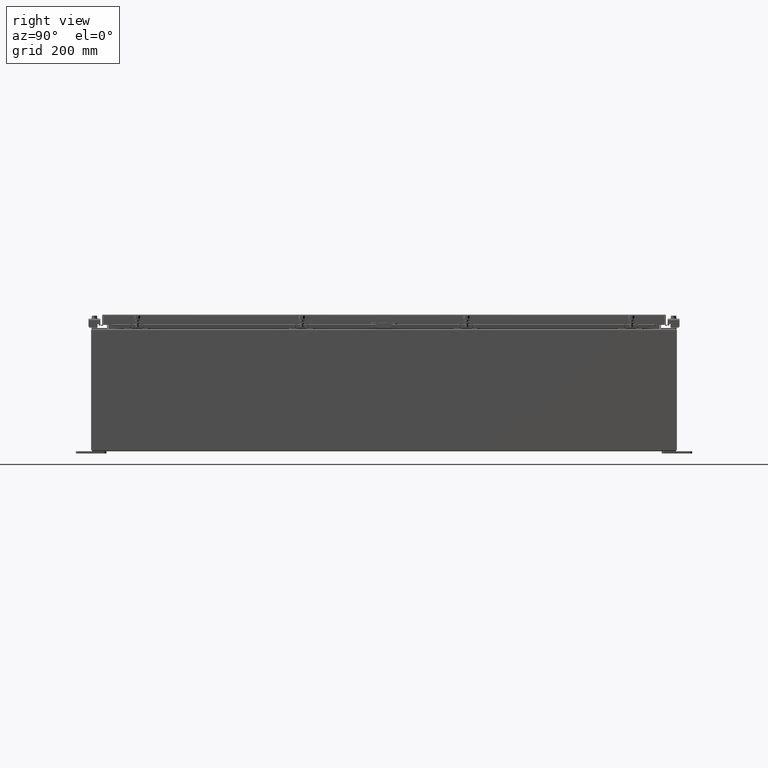
[diagram: clean part render]
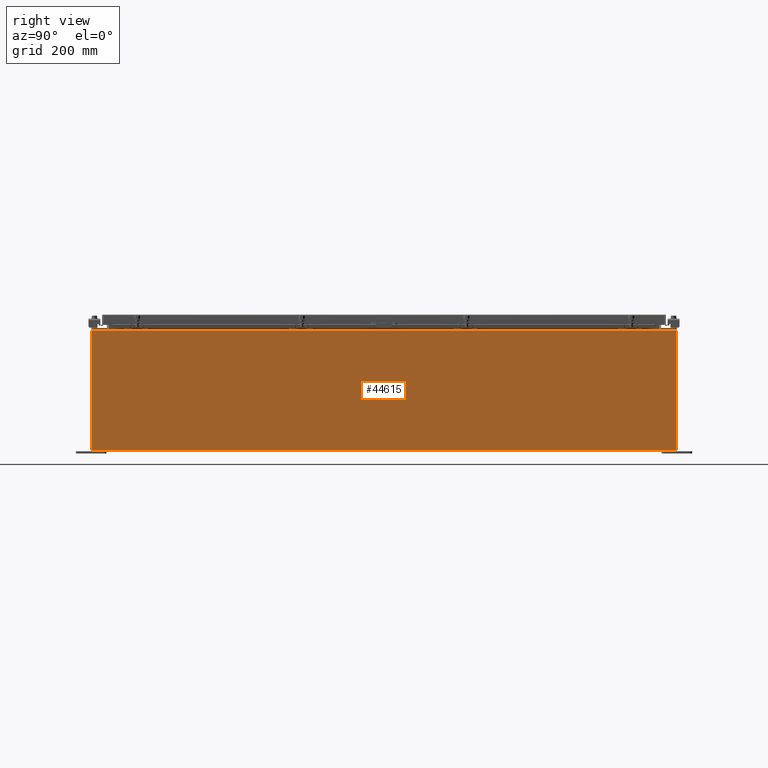
[diagram: same view with one face highlighted and labeled with its STEP entity id]
A machine part, right view. The second image highlights one B-rep face of the part: STEP entity #44615.
In plain terms, the highlighted planar face has unit normal (-1, 0, 0).
Its self-contained STEP definition (entity closure, byte-faithful):
#569 = EDGE_LOOP ( 'NONE', ( #42918, #6425, #26117, #10648 ) ) ;
#2045 = CARTESIAN_POINT ( 'NONE',  ( 15.00000000000003400, -23.92529999999998600, 9.837600000000001900 ) ) ;
#3086 = LINE ( 'NONE', #20390, #34257 ) ;
#4855 = VERTEX_POINT ( 'NONE', #5980 ) ;
#5980 = CARTESIAN_POINT ( 'NONE',  ( 14.99999999999999800, -23.92529999999998200, 0.01300000000000071400 ) ) ;
#6425 = ORIENTED_EDGE ( 'NONE', *, *, #45496, .T. ) ;
#6524 = LINE ( 'NONE', #9921, #14799 ) ;
#8556 = EDGE_CURVE ( 'NONE', #39791, #4855, #12468, .T. ) ;
#9921 = CARTESIAN_POINT ( 'NONE',  ( 14.99999999999999800, 23.92529999999999600, -5.310029537684911500E-014 ) ) ;
#10205 = FACE_OUTER_BOUND ( 'NONE', #569, .T. ) ;
#10648 = ORIENTED_EDGE ( 'NONE', *, *, #15050, .T. ) ;
#12468 = LINE ( 'NONE', #31070, #43641 ) ;
#14002 = DIRECTION ( 'NONE',  ( 3.523082860860888200E-015, 0.0000000000000000000, 1.000000000000000000 ) ) ;
#14799 = VECTOR ( 'NONE', #14002, 39.37007874015748100 ) ;
#15050 = EDGE_CURVE ( 'NONE', #39791, #20518, #6524, .T. ) ;
#15096 = VERTEX_POINT ( 'NONE', #2045 ) ;
#16465 = DIRECTION ( 'NONE',  ( -3.523082860860888200E-015, 0.0000000000000000000, -1.000000000000000000 ) ) ;
#18135 = CARTESIAN_POINT ( 'NONE',  ( 14.99999999999999800, 0.0000000000000000000, -5.310029537684911500E-014 ) ) ;
#20390 = CARTESIAN_POINT ( 'NONE',  ( 14.99999999999999800, -23.92529999999998600, -5.310029537684911500E-014 ) ) ;
#20518 = VERTEX_POINT ( 'NONE', #47339 ) ;
#22235 = PLANE ( 'NONE',  #44943 ) ;
#26117 = ORIENTED_EDGE ( 'NONE', *, *, #8556, .F. ) ;
#26345 = DIRECTION ( 'NONE',  ( 3.523082860860887800E-015, 0.0000000000000000000, 1.000000000000000000 ) ) ;
#26986 = DIRECTION ( 'NONE',  ( 1.609096119163526300E-031, -1.000000000000000000, 4.567295697298285000E-017 ) ) ;
#27096 = CARTESIAN_POINT ( 'NONE',  ( 15.00000000000003400, 23.92529999999999600, 9.837599999999994800 ) ) ;
#27208 = VECTOR ( 'NONE', #31185, 39.37007874015748100 ) ;
#31070 = CARTESIAN_POINT ( 'NONE',  ( 14.99999999999999800, -23.92529999999998600, 0.01299999999999985200 ) ) ;
#31185 = DIRECTION ( 'NONE',  ( -0.0000000000000000000, -1.000000000000000000, -0.0000000000000000000 ) ) ;
#34257 = VECTOR ( 'NONE', #16465, 39.37007874015748100 ) ;
#37018 = EDGE_CURVE ( 'NONE', #20518, #15096, #37985, .T. ) ;
#37985 = LINE ( 'NONE', #27096, #27208 ) ;
#39791 = VERTEX_POINT ( 'NONE', #44874 ) ;
#42918 = ORIENTED_EDGE ( 'NONE', *, *, #37018, .T. ) ;
#43641 = VECTOR ( 'NONE', #26986, 39.37007874015748100 ) ;
#44615 = ADVANCED_FACE ( 'NONE', ( #10205 ), #22235, .F. ) ;
#44874 = CARTESIAN_POINT ( 'NONE',  ( 14.99999999999999800, 23.92529999999998900, 0.01299999999999766600 ) ) ;
#44943 = AXIS2_PLACEMENT_3D ( 'NONE', #18135, #50657, #26345 ) ;
#45496 = EDGE_CURVE ( 'NONE', #15096, #4855, #3086, .T. ) ;
#47339 = CARTESIAN_POINT ( 'NONE',  ( 15.00000000000003400, 23.92529999999998600, 9.837599999999994800 ) ) ;
#50657 = DIRECTION ( 'NONE',  ( -1.000000000000000000, 0.0000000000000000000, 3.523082860860887800E-015 ) ) ;